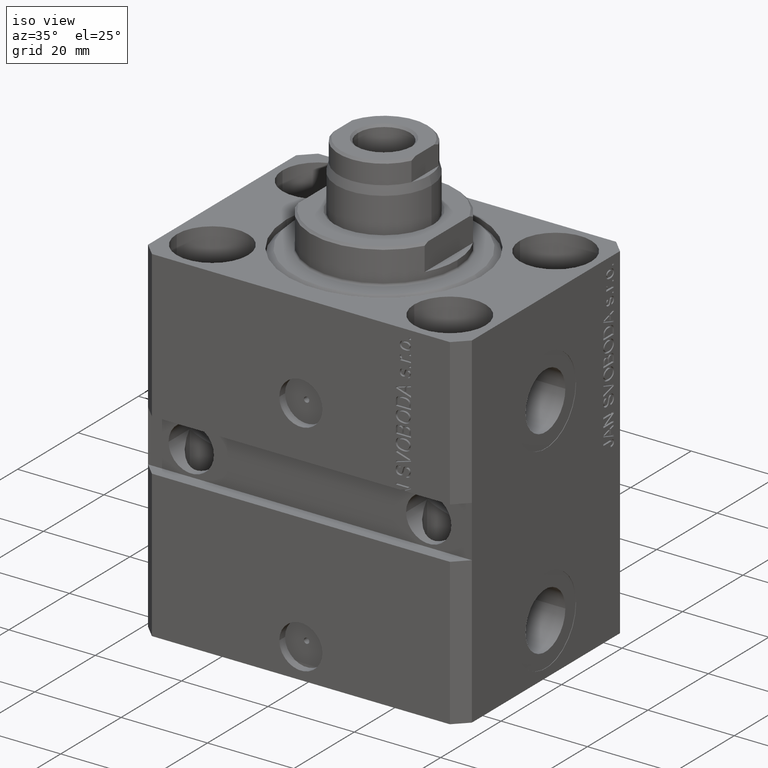
[diagram: clean part render]
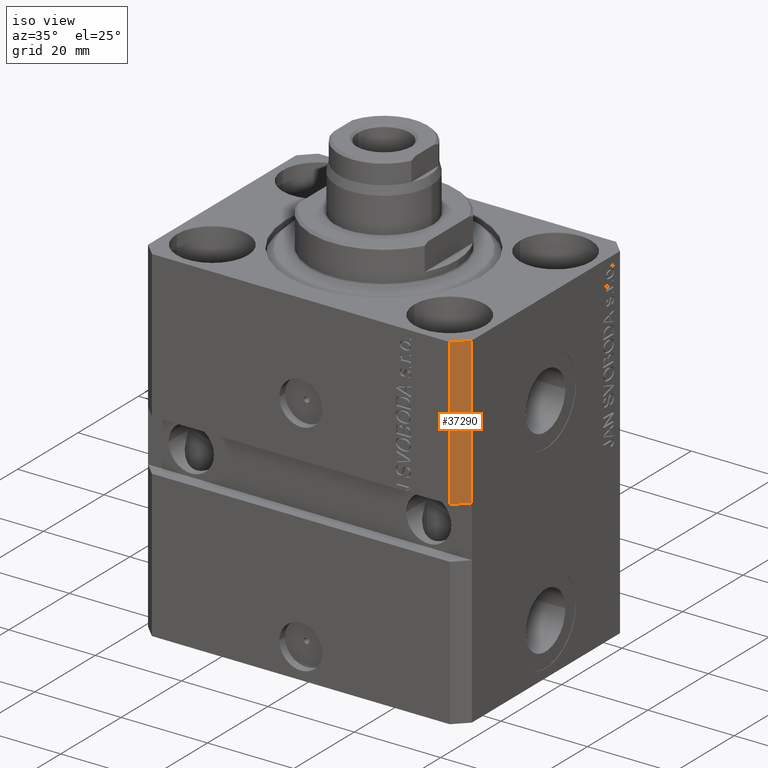
[diagram: same view with one face highlighted and labeled with its STEP entity id]
A machine part, iso view. The second image highlights one B-rep face of the part: STEP entity #37290.
In plain terms, the highlighted planar face has unit normal (0.7071, -0.7071, 0).
Its self-contained STEP definition (entity closure, byte-faithful):
#3218 = DIRECTION ( 'NONE',  ( 0.7071067811865474617, 0.7071067811865474617, 0.000000000000000000 ) ) ;
#3295 = LINE ( 'NONE', #30291, #3702 ) ;
#3677 = DIRECTION ( 'NONE',  ( 0.7071067811865474617, 0.7071067811865474617, 0.000000000000000000 ) ) ;
#3702 = VECTOR ( 'NONE', #16819, 1000.000000000000114 ) ;
#4753 = EDGE_CURVE ( 'NONE', #8101, #15368, #6131, .T. ) ;
#5039 = CARTESIAN_POINT ( 'NONE',  ( 37.49999999999999289, -24.49999999999999289, -33.99999999999998579 ) ) ;
#6131 = LINE ( 'NONE', #33537, #16231 ) ;
#6159 = DIRECTION ( 'NONE',  ( 0.000000000000000000, 0.000000000000000000, 1.000000000000000000 ) ) ;
#8101 = VERTEX_POINT ( 'NONE', #43118 ) ;
#8440 = VECTOR ( 'NONE', #26225, 1000.000000000000000 ) ;
#9477 = PLANE ( 'NONE',  #14282 ) ;
#9631 = EDGE_LOOP ( 'NONE', ( #14345, #33688, #42748, #35127 ) ) ;
#14282 = AXIS2_PLACEMENT_3D ( 'NONE', #22958, #17418, #3677 ) ;
#14345 = ORIENTED_EDGE ( 'NONE', *, *, #24495, .F. ) ;
#15368 = VERTEX_POINT ( 'NONE', #21784 ) ;
#16231 = VECTOR ( 'NONE', #3218, 1000.000000000000114 ) ;
#16819 = DIRECTION ( 'NONE',  ( -0.7071067811865474617, -0.7071067811865474617, -1.308410382236479511E-16 ) ) ;
#16979 = VERTEX_POINT ( 'NONE', #38840 ) ;
#17418 = DIRECTION ( 'NONE',  ( 0.7071067811865475727, -0.7071067811865475727, 0.000000000000000000 ) ) ;
#19375 = CARTESIAN_POINT ( 'NONE',  ( 34.49999999999999289, -27.49999999999999645, -80.00000000000000000 ) ) ;
#21784 = CARTESIAN_POINT ( 'NONE',  ( 37.49999999999999289, -24.50000000000000000, 0.000000000000000000 ) ) ;
#22958 = CARTESIAN_POINT ( 'NONE',  ( 34.49999999999999289, -27.49999999999999645, -80.00000000000000000 ) ) ;
#24495 = EDGE_CURVE ( 'NONE', #24605, #16979, #3295, .T. ) ;
#24605 = VERTEX_POINT ( 'NONE', #5039 ) ;
#26225 = DIRECTION ( 'NONE',  ( 0.000000000000000000, 0.000000000000000000, 1.000000000000000000 ) ) ;
#30291 = CARTESIAN_POINT ( 'NONE',  ( 34.49999999999998579, -27.50000000000000000, -33.99999999999998579 ) ) ;
#33537 = CARTESIAN_POINT ( 'NONE',  ( 34.49999999999999289, -27.49999999999999645, 0.000000000000000000 ) ) ;
#33688 = ORIENTED_EDGE ( 'NONE', *, *, #42343, .T. ) ;
#35127 = ORIENTED_EDGE ( 'NONE', *, *, #39314, .F. ) ;
#36468 = CARTESIAN_POINT ( 'NONE',  ( 37.49999999999999289, -24.50000000000000000, -80.00000000000000000 ) ) ;
#37290 = ADVANCED_FACE ( 'NONE', ( #39789 ), #9477, .T. ) ;
#38840 = CARTESIAN_POINT ( 'NONE',  ( 34.49999999999999289, -27.49999999999999289, -33.99999999999998579 ) ) ;
#39314 = EDGE_CURVE ( 'NONE', #16979, #8101, #43726, .T. ) ;
#39789 = FACE_OUTER_BOUND ( 'NONE', #9631, .T. ) ;
#40014 = LINE ( 'NONE', #36468, #41551 ) ;
#41551 = VECTOR ( 'NONE', #6159, 1000.000000000000000 ) ;
#42343 = EDGE_CURVE ( 'NONE', #24605, #15368, #40014, .T. ) ;
#42748 = ORIENTED_EDGE ( 'NONE', *, *, #4753, .F. ) ;
#43118 = CARTESIAN_POINT ( 'NONE',  ( 34.49999999999999289, -27.49999999999999645, 0.000000000000000000 ) ) ;
#43726 = LINE ( 'NONE', #19375, #8440 ) ;